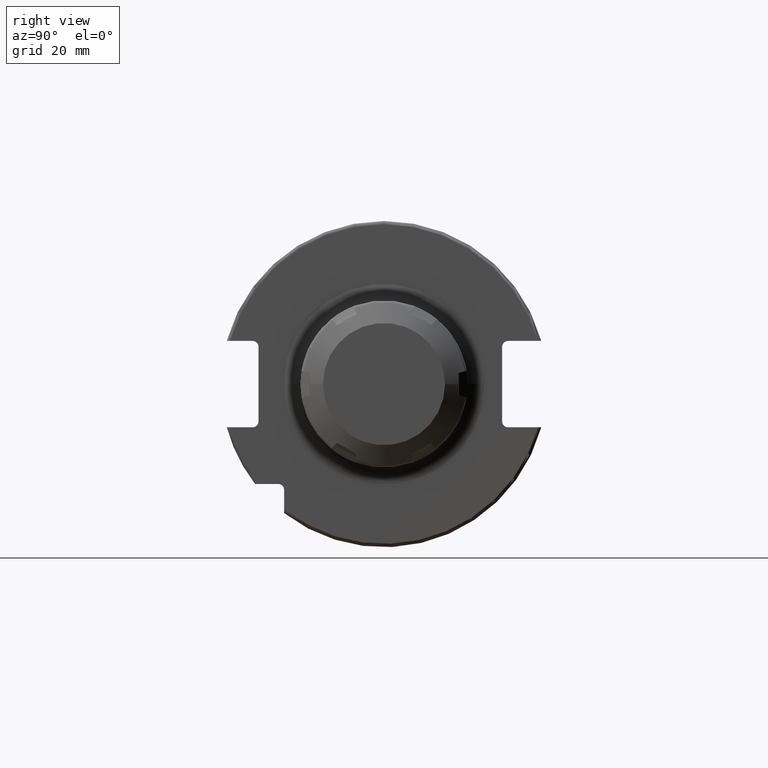
[diagram: clean part render]
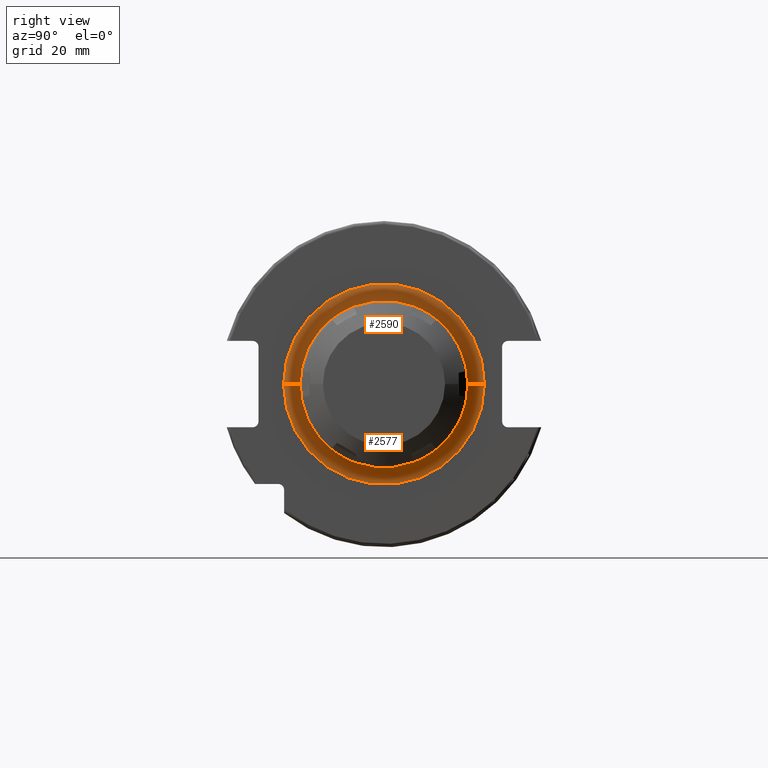
[diagram: same view with one multi-face feature highlighted, each face labeled with its STEP entity id]
A machine part, right view. The highlighted faces form ONE feature: a constant-radius fillet chain: 2 tangent blend faces with common blend radius 6 mm. The faces share edges in the B-rep.
Their STEP definitions:
[1] entity #2577 (Torus):
#172=CARTESIAN_POINT('',(1.905E1,0.E0,0.E0));
#173=DIRECTION('',(1.E0,0.E0,0.E0));
#174=DIRECTION('',(0.E0,-1.E0,0.E0));
#175=AXIS2_PLACEMENT_3D('',#172,#173,#174);
#952=CARTESIAN_POINT('',(2.505E1,-3.E1,6.585287870564E-13));
#953=DIRECTION('',(0.E0,-2.195119086501E-14,-1.E0));
#954=DIRECTION('',(-1.E0,1.065814103640E-14,0.E0));
#955=AXIS2_PLACEMENT_3D('',#952,#953,#954);
#957=CARTESIAN_POINT('',(2.505E1,3.E1,-6.616929226766E-13));
#958=DIRECTION('',(0.E0,2.205527427357E-14,1.E0));
#959=DIRECTION('',(-1.E0,0.E0,0.E0));
#960=AXIS2_PLACEMENT_3D('',#957,#958,#959);
#991=CARTESIAN_POINT('',(2.505E1,0.E0,0.E0));
#992=DIRECTION('',(1.E0,0.E0,0.E0));
#993=DIRECTION('',(0.E0,-1.E0,0.E0));
#994=AXIS2_PLACEMENT_3D('',#991,#992,#993);
#1547=CARTESIAN_POINT('',(1.905E1,-3.E1,0.E0));
#1548=CARTESIAN_POINT('',(1.905E1,3.E1,0.E0));
#1549=VERTEX_POINT('',#1547);
#1550=VERTEX_POINT('',#1548);
#1551=CARTESIAN_POINT('',(2.505E1,-2.4E1,0.E0));
#1552=CARTESIAN_POINT('',(2.505E1,2.4E1,0.E0));
#1553=VERTEX_POINT('',#1551);
#1554=VERTEX_POINT('',#1552);
#2563=CARTESIAN_POINT('',(2.505E1,0.E0,0.E0));
#2564=DIRECTION('',(1.E0,0.E0,0.E0));
#2565=DIRECTION('',(0.E0,-9.999794752457E-1,6.406956165906E-3));
#2566=AXIS2_PLACEMENT_3D('',#2563,#2564,#2565);
#2567=TOROIDAL_SURFACE('',#2566,3.E1,6.E0);
#2568=ORIENTED_EDGE('',*,*,#1810,.F.);
#2570=ORIENTED_EDGE('',*,*,#2569,.T.);
#2572=ORIENTED_EDGE('',*,*,#2571,.T.);
#2574=ORIENTED_EDGE('',*,*,#2573,.F.);
#2575=EDGE_LOOP('',(#2568,#2570,#2572,#2574));
#2576=FACE_OUTER_BOUND('',#2575,.F.);
#2577=ADVANCED_FACE('',(#2576),#2567,.F.);
#176=CIRCLE('',#175,3.E1);
#956=CIRCLE('',#955,6.E0);
#961=CIRCLE('',#960,6.E0);
#995=CIRCLE('',#994,2.4E1);
#1810=EDGE_CURVE('',#1549,#1550,#176,.T.);
#2569=EDGE_CURVE('',#1549,#1553,#956,.T.);
#2571=EDGE_CURVE('',#1553,#1554,#995,.T.);
#2573=EDGE_CURVE('',#1550,#1554,#961,.T.);
[2] entity #2590 (Torus):
#177=CARTESIAN_POINT('',(1.905E1,0.E0,0.E0));
#178=DIRECTION('',(1.E0,0.E0,0.E0));
#179=DIRECTION('',(0.E0,1.E0,0.E0));
#180=AXIS2_PLACEMENT_3D('',#177,#178,#179);
#952=CARTESIAN_POINT('',(2.505E1,-3.E1,6.585287870564E-13));
#953=DIRECTION('',(0.E0,-2.195119086501E-14,-1.E0));
#954=DIRECTION('',(-1.E0,1.065814103640E-14,0.E0));
#955=AXIS2_PLACEMENT_3D('',#952,#953,#954);
#957=CARTESIAN_POINT('',(2.505E1,3.E1,-6.616929226766E-13));
#958=DIRECTION('',(0.E0,2.205527427357E-14,1.E0));
#959=DIRECTION('',(-1.E0,0.E0,0.E0));
#960=AXIS2_PLACEMENT_3D('',#957,#958,#959);
#967=CARTESIAN_POINT('',(2.505E1,0.E0,0.E0));
#968=DIRECTION('',(1.E0,0.E0,0.E0));
#969=DIRECTION('',(0.E0,1.E0,0.E0));
#970=AXIS2_PLACEMENT_3D('',#967,#968,#969);
#1547=CARTESIAN_POINT('',(1.905E1,-3.E1,0.E0));
#1548=CARTESIAN_POINT('',(1.905E1,3.E1,0.E0));
#1549=VERTEX_POINT('',#1547);
#1550=VERTEX_POINT('',#1548);
#1551=CARTESIAN_POINT('',(2.505E1,-2.4E1,0.E0));
#1552=CARTESIAN_POINT('',(2.505E1,2.4E1,0.E0));
#1553=VERTEX_POINT('',#1551);
#1554=VERTEX_POINT('',#1552);
#2578=CARTESIAN_POINT('',(2.505E1,0.E0,0.E0));
#2579=DIRECTION('',(1.E0,0.E0,0.E0));
#2580=DIRECTION('',(0.E0,9.999794752457E-1,-6.406956165906E-3));
#2581=AXIS2_PLACEMENT_3D('',#2578,#2579,#2580);
#2582=TOROIDAL_SURFACE('',#2581,3.E1,6.E0);
#2583=ORIENTED_EDGE('',*,*,#1812,.F.);
#2584=ORIENTED_EDGE('',*,*,#2573,.T.);
#2586=ORIENTED_EDGE('',*,*,#2585,.T.);
#2587=ORIENTED_EDGE('',*,*,#2569,.F.);
#2588=EDGE_LOOP('',(#2583,#2584,#2586,#2587));
#2589=FACE_OUTER_BOUND('',#2588,.F.);
#2590=ADVANCED_FACE('',(#2589),#2582,.F.);
#181=CIRCLE('',#180,3.E1);
#956=CIRCLE('',#955,6.E0);
#961=CIRCLE('',#960,6.E0);
#971=CIRCLE('',#970,2.4E1);
#1812=EDGE_CURVE('',#1550,#1549,#181,.T.);
#2569=EDGE_CURVE('',#1549,#1553,#956,.T.);
#2573=EDGE_CURVE('',#1550,#1554,#961,.T.);
#2585=EDGE_CURVE('',#1554,#1553,#971,.T.);